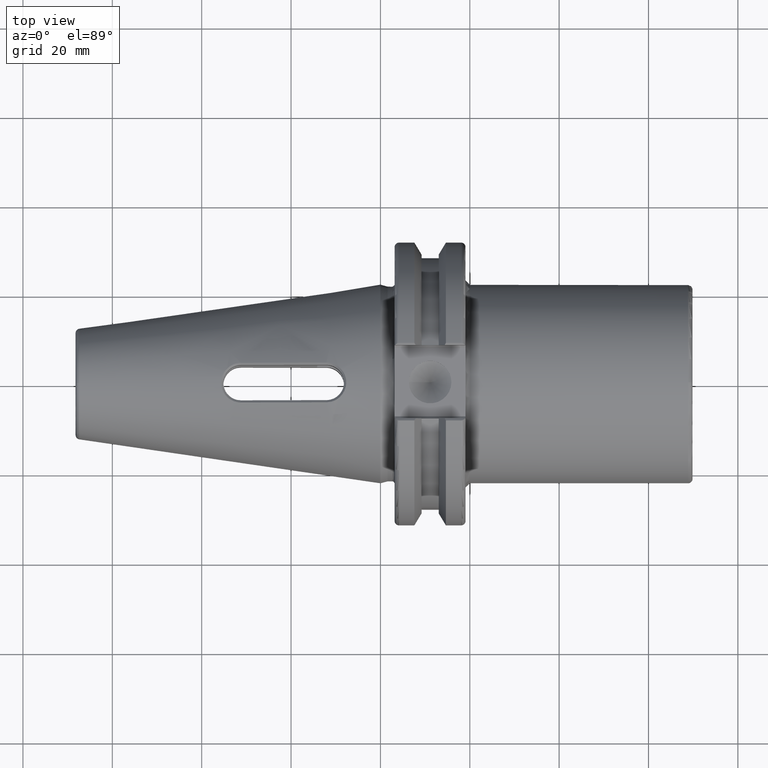
[diagram: clean part render]
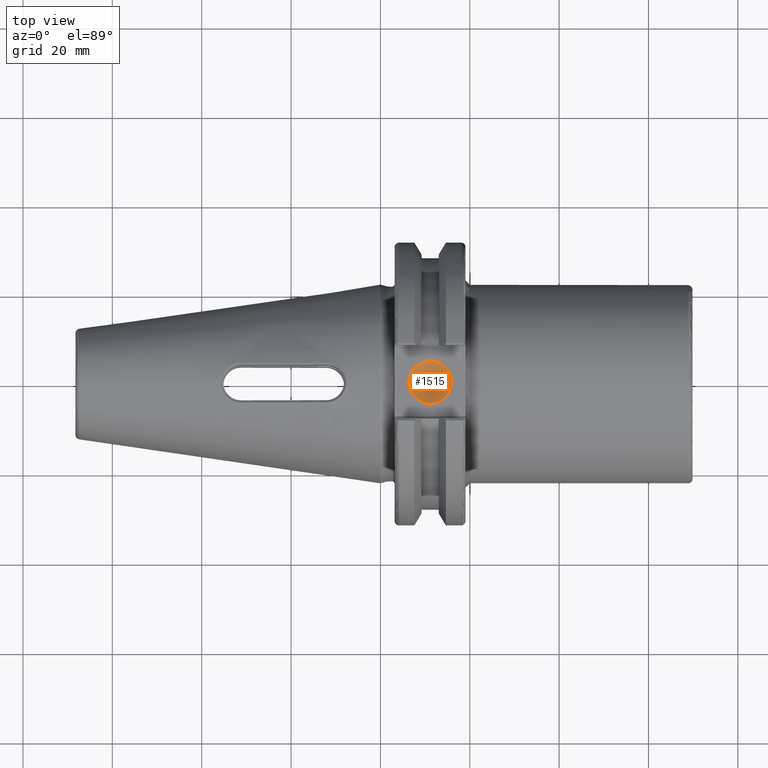
[diagram: same view with one face highlighted and labeled with its STEP entity id]
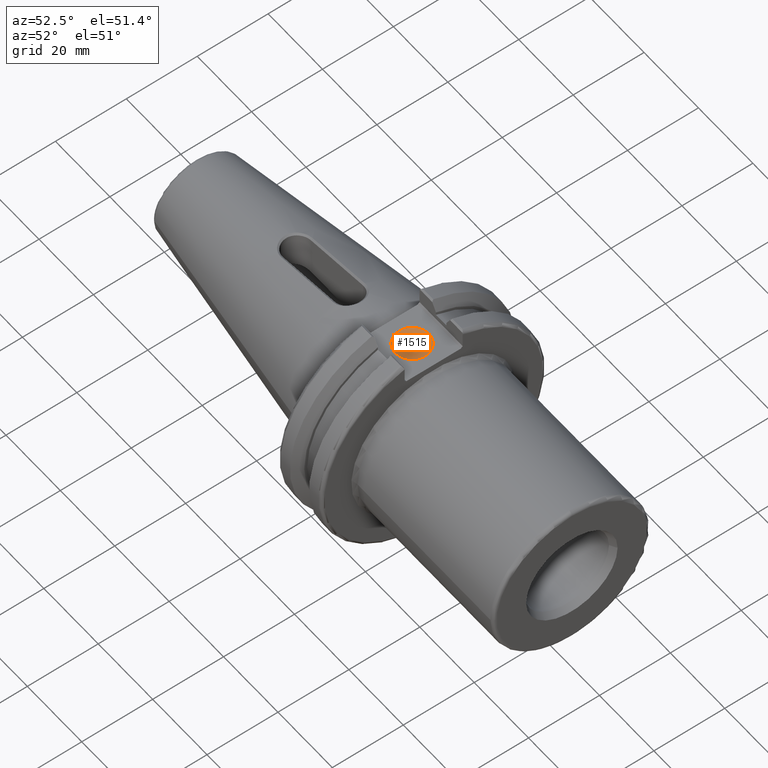
[diagram: same view with one face highlighted and labeled with its STEP entity id]
A machine part, top view. The second image highlights one B-rep face of the part: STEP entity #1515.
A second angle (auxiliary view) of the same face is appended — the face is thin or edge-on in the first view.
In plain terms, the highlighted conical surface has half-angle 59 deg.
Its self-contained STEP definition (entity closure, byte-faithful):
#233=FACE_OUTER_BOUND('',#321,.T.);
#321=EDGE_LOOP('',(#1370,#1371,#1372));
#439=LINE('',#3245,#544);
#544=VECTOR('',#1966,2.38125);
#591=CIRCLE('',#1648,4.7625);
#746=VERTEX_POINT('',#3242);
#747=VERTEX_POINT('',#3244);
#964=EDGE_CURVE('',#746,#746,#591,.T.);
#965=EDGE_CURVE('',#746,#747,#439,.T.);
#1370=ORIENTED_EDGE('',*,*,#964,.T.);
#1371=ORIENTED_EDGE('',*,*,#965,.T.);
#1372=ORIENTED_EDGE('',*,*,#965,.F.);
#1442=CONICAL_SURFACE('',#1647,2.38125,1.02974425867665);
#1515=ADVANCED_FACE('',(#233),#1442,.F.);
#1647=AXIS2_PLACEMENT_3D('',#3241,#1962,#1963);
#1648=AXIS2_PLACEMENT_3D('',#3243,#1964,#1965);
#1962=DIRECTION('center_axis',(0.,0.,1.));
#1963=DIRECTION('ref_axis',(1.,0.,0.));
#1964=DIRECTION('center_axis',(0.,0.,1.));
#1965=DIRECTION('ref_axis',(1.,0.,0.));
#1966=DIRECTION('',(0.857167300702112,1.04972719113862E-16,-0.515038074910054));
#3241=CARTESIAN_POINT('Origin',(11.127,0.,23.1692006509406));
#3242=CARTESIAN_POINT('',(6.3645,-5.83238038093927E-16,24.6));
#3243=CARTESIAN_POINT('Origin',(11.127,0.,24.6));
#3244=CARTESIAN_POINT('',(11.127,0.,21.7384013018812));
#3245=CARTESIAN_POINT('',(8.74575,-2.91619019046964E-16,23.1692006509406));